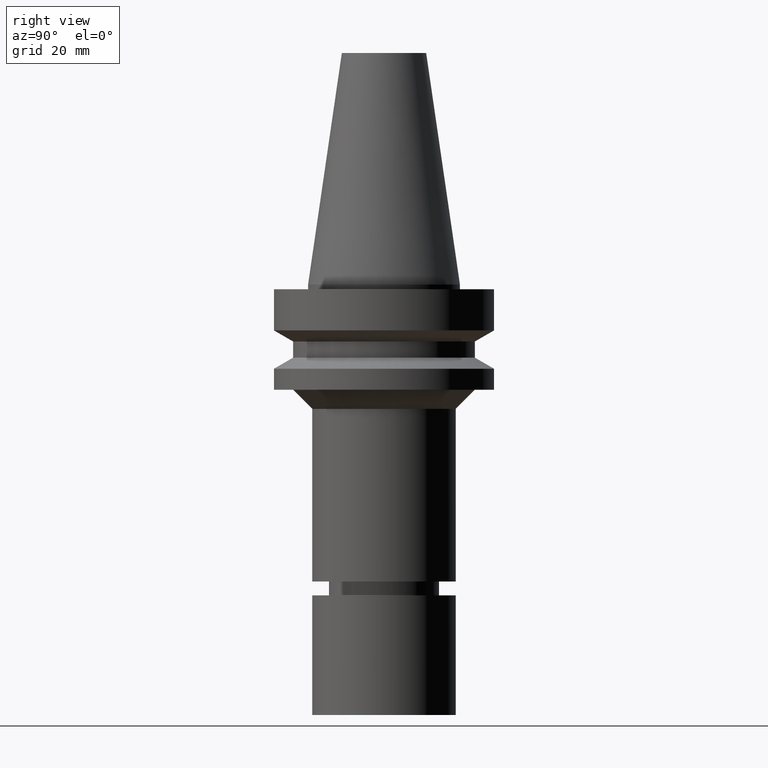
[diagram: clean part render]
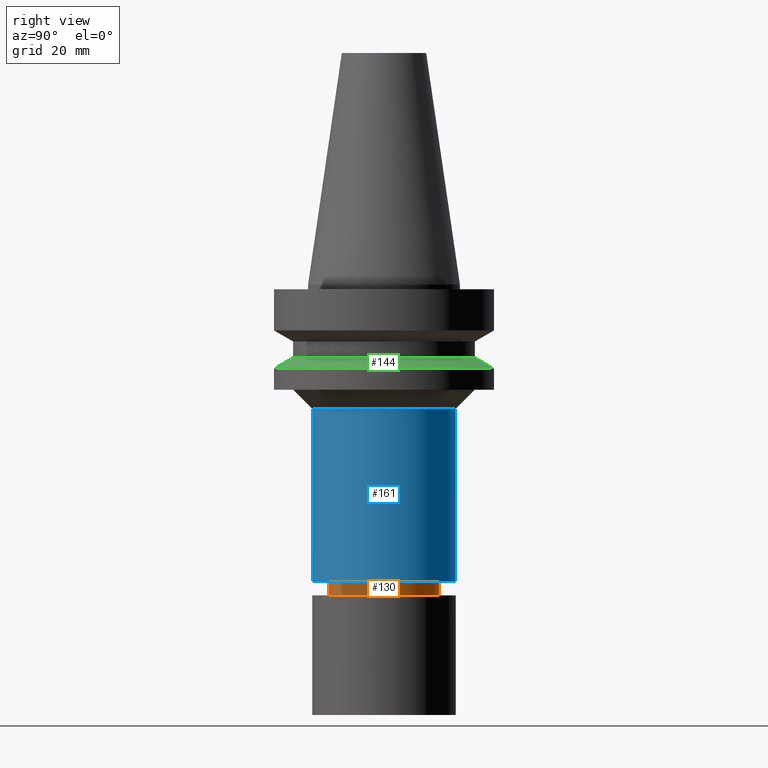
[diagram: same view with three faces highlighted in distinct colors, each labeled with its STEP entity id]
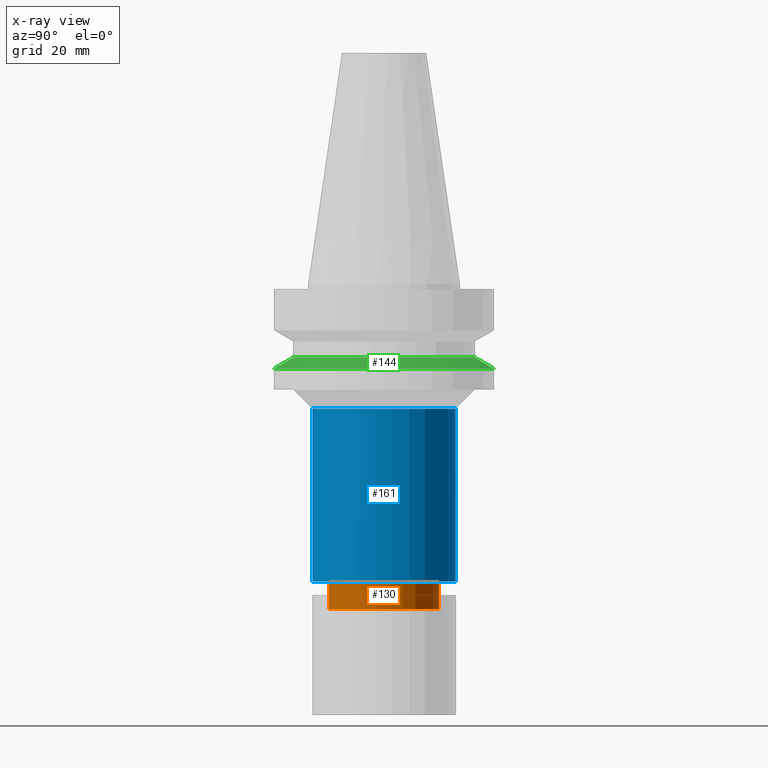
[diagram: x-ray of the same camera — body ghosted, the three highlighted faces saturated]
A machine part, right view with three faces highlighted in distinct colors.
The next image is the same camera in x-ray (body ghosted, the three faces saturated) — at least one of them is partly hidden behind the body in this view.
Their STEP definitions:

[orange] entity #130 — the highlighted cylindrical surface (bore or boss wall) has radius 11.5 mm, axis along (0, 0, -1).
#99=EDGE_CURVE('Unnamed[1]',#237,#237,#238,.T.);
#130=ADVANCED_FACE('Unnamed[1]',(#285,#286),#287,.T.);
#149=EDGE_CURVE('Unnamed[1]',#316,#316,#317,.T.);
#237=VERTEX_POINT('',#421);
#238=CIRCLE('',#422,11.5000000000021);
#285=FACE_BOUND('',#481,.T.);
#286=FACE_BOUND('',#482,.T.);
#287=CYLINDRICAL_SURFACE('',#483,11.4999999999964);
#316=VERTEX_POINT('',#520);
#317=CIRCLE('',#521,11.4999999999907);
#421=CARTESIAN_POINT('',(4.15836933111325E-015,11.5000000000021,-67.9113248653974));
#422=AXIS2_PLACEMENT_3D('',#619,#620,#621);
#481=EDGE_LOOP('',(#673));
#482=EDGE_LOOP('',(#674));
#483=AXIS2_PLACEMENT_3D('',#675,#676,#677);
#520=CARTESIAN_POINT('',(3.80252831135254E-015,11.4999999999907,-62.1000000000001));
#521=AXIS2_PLACEMENT_3D('',#708,#709,#710);
#619=CARTESIAN_POINT('',(4.15836933111325E-015,8.31673866222649E-015,-67.9113248653974));
#620=DIRECTION('',(6.12323399573676E-017,1.22464679914694E-016,-1.0));
#621=DIRECTION('',(-1.23259516440761E-032,1.0,1.22464679914694E-016));
#673=ORIENTED_EDGE('',*,*,#99,.F.);
#674=ORIENTED_EDGE('',*,*,#149,.T.);
#675=CARTESIAN_POINT('',(3.98044882123289E-015,7.96089764246578E-015,-65.0056624326987));
#676=DIRECTION('',(6.12323399573676E-017,1.22464679914755E-016,-1.0));
#677=DIRECTION('',(-1.23259516440822E-032,1.0,1.22464679914755E-016));
#708=CARTESIAN_POINT('',(3.80252831135254E-015,7.60505662270507E-015,-62.1000000000001));
#709=DIRECTION('',(6.12323399573677E-017,1.22464679914675E-016,-1.0));
#710=DIRECTION('',(-1.23259516440727E-032,1.0,1.22464679914675E-016));

[blue] entity #161 — the highlighted cylindrical surface (bore or boss wall) has radius 15 mm, axis along (0, 0, -1).
#80=EDGE_CURVE('Unnamed[1]',#207,#207,#208,.T.);
#161=ADVANCED_FACE('Unnamed[1]',(#332,#333),#334,.T.);
#180=EDGE_CURVE('Unnamed[1]',#362,#362,#363,.T.);
#207=VERTEX_POINT('',#384);
#208=CIRCLE('',#385,15.0000000000002);
#332=FACE_BOUND('',#540,.T.);
#333=FACE_BOUND('',#541,.T.);
#334=CYLINDRICAL_SURFACE('',#542,15.0000000000002);
#362=VERTEX_POINT('',#577);
#363=CIRCLE('',#578,15.0000000000003);
#384=CARTESIAN_POINT('',(3.80252831135249E-015,15.0000000000002,-62.0999999999994));
#385=AXIS2_PLACEMENT_3D('',#584,#585,#586);
#540=EDGE_LOOP('',(#722));
#541=EDGE_LOOP('',(#723));
#542=AXIS2_PLACEMENT_3D('',#724,#725,#726);
#577=CARTESIAN_POINT('',(1.59204083889156E-015,15.0000000000003,-26.0));
#578=AXIS2_PLACEMENT_3D('',#758,#759,#760);
#584=CARTESIAN_POINT('',(3.80252831135249E-015,7.60505662270498E-015,-62.0999999999994));
#585=DIRECTION('',(6.12323399573677E-017,1.22464679914799E-016,-1.0));
#586=DIRECTION('',(-1.23259516440781E-032,1.0,1.22464679914799E-016));
#722=ORIENTED_EDGE('',*,*,#80,.F.);
#723=ORIENTED_EDGE('',*,*,#180,.T.);
#724=CARTESIAN_POINT('',(2.69728457512203E-015,5.39456915024405E-015,-44.0499999999997));
#725=DIRECTION('',(6.12323399573677E-017,1.22464679914799E-016,-1.0));
#726=DIRECTION('',(-1.23259516440781E-032,1.0,1.22464679914799E-016));
#758=CARTESIAN_POINT('',(1.59204083889156E-015,3.18408167778312E-015,-26.0));
#759=DIRECTION('',(6.12323399573677E-017,1.22464679914799E-016,-1.0));
#760=DIRECTION('',(-1.23259516440781E-032,1.0,1.22464679914799E-016));

[green] entity #144 — the highlighted conical surface has half-angle 60 deg.
#101=EDGE_CURVE('Unnamed[1]',#240,#240,#241,.T.);
#103=EDGE_CURVE('Unnamed[1]',#243,#243,#244,.T.);
#144=ADVANCED_FACE('Unnamed[1]',(#307,#308),#309,.T.);
#240=VERTEX_POINT('',#425);
#241=CIRCLE('',#426,19.0);
#243=VERTEX_POINT('',#429);
#244=CIRCLE('',#430,23.0);
#307=FACE_BOUND('',#509,.T.);
#308=FACE_BOUND('',#510,.T.);
#309=CONICAL_SURFACE('',#511,21.0,1.04719755058882);
#425=CARTESIAN_POINT('',(9.36279151221199E-016,19.0,-15.29059892));
#426=AXIS2_PLACEMENT_3D('',#622,#623,#624);
#429=CARTESIAN_POINT('',(1.07768918324967E-015,23.0,-17.6));
#430=AXIS2_PLACEMENT_3D('',#625,#626,#627);
#509=EDGE_LOOP('',(#697));
#510=EDGE_LOOP('',(#698));
#511=AXIS2_PLACEMENT_3D('',#699,#700,#701);
#622=CARTESIAN_POINT('',(9.36279151221199E-016,1.8725583024424E-015,-15.29059892));
#623=DIRECTION('',(6.12323399573677E-017,1.22464679914665E-016,-1.0));
#624=DIRECTION('',(-1.23259516440783E-032,1.0,1.22464679914665E-016));
#625=CARTESIAN_POINT('',(1.07768918324967E-015,2.15537836649934E-015,-17.6));
#626=DIRECTION('',(6.12323399573677E-017,1.22464679914716E-016,-1.0));
#627=DIRECTION('',(-1.23259516440783E-032,1.0,1.22464679914716E-016));
#697=ORIENTED_EDGE('',*,*,#103,.F.);
#698=ORIENTED_EDGE('',*,*,#101,.T.);
#699=CARTESIAN_POINT('',(1.00698416723543E-015,2.01396833447087E-015,-16.44529946));
#700=DIRECTION('',(6.12323399573677E-017,1.2246467991477E-016,-1.0));
#701=DIRECTION('',(-1.23259516440783E-032,1.0,1.2246467991477E-016));